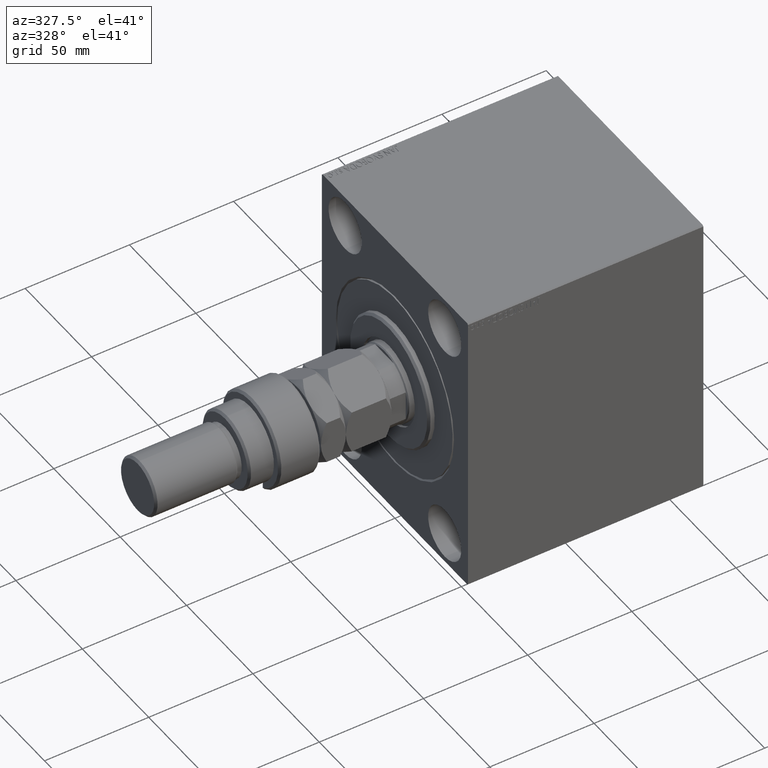
[diagram: clean part render]
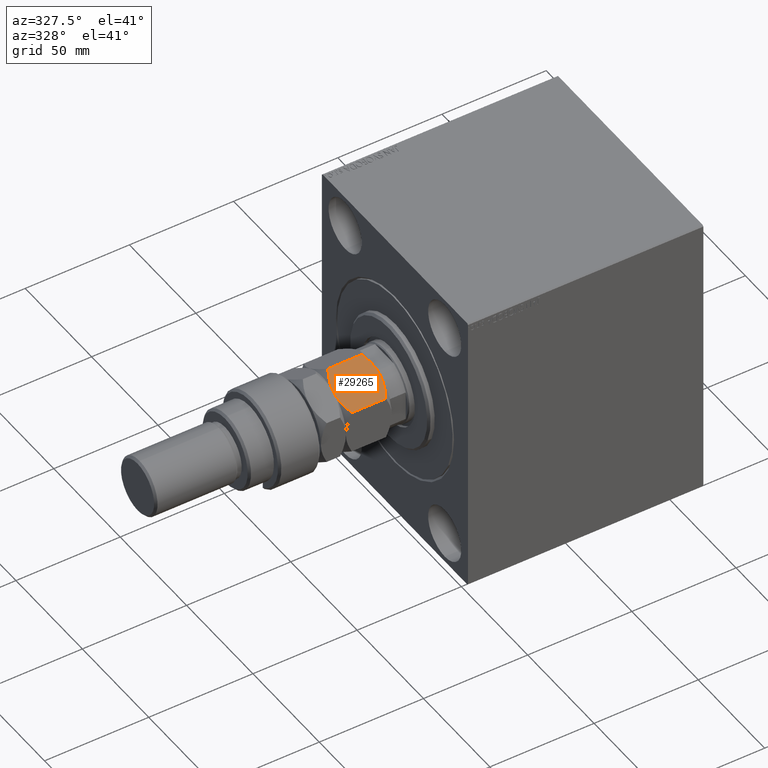
[diagram: same view with one face highlighted and labeled with its STEP entity id]
A machine part, auxiliary view. The second image highlights one B-rep face of the part: STEP entity #29265.
In plain terms, the highlighted planar face has unit normal (0, 0.5, -0.866).
Its self-contained STEP definition (entity closure, byte-faithful):
#117 = CARTESIAN_POINT ( 'NONE',  ( 18.00000000000000355, 5.777644679957243845, 0.8999462410975483939 ) ) ;
#952 = CARTESIAN_POINT ( 'NONE',  ( 18.00000000000000000, -10.39230484541326760, 19.21539030917347901 ) ) ;
#2012 = CARTESIAN_POINT ( 'NONE',  ( 18.00000000000000000, 10.39230484541326227, 19.21539030917347901 ) ) ;
#2177 = CARTESIAN_POINT ( 'NONE',  ( 18.00000000000000355, -9.585738860786738869, 19.61867330148673716 ) ) ;
#3272 = CARTESIAN_POINT ( 'NONE',  ( 18.00000000000000355, -0.4570166227920092750, -1.873806285915962579E-14 ) ) ;
#3894 = CARTESIAN_POINT ( 'NONE',  ( 18.00000000000000000, 6.209292796908475687, 1.036623049275358532 ) ) ;
#4890 = LINE ( 'NONE', #12198, #5027 ) ;
#5024 = AXIS2_PLACEMENT_3D ( 'NONE', #16537, #34711, #31395 ) ;
#5027 = VECTOR ( 'NONE', #44530, 1000.000000000000000 ) ;
#5308 = CARTESIAN_POINT ( 'NONE',  ( 18.00000000000000000, 3.606660380382275655, 21.66338348051975871 ) ) ;
#5546 = CARTESIAN_POINT ( 'NONE',  ( 17.99999999999999645, 0.9155406990339389761, 21.98238456327074175 ) ) ;
#6594 = PLANE ( 'NONE',  #5024 ) ;
#6781 = VERTEX_POINT ( 'NONE', #31575 ) ;
#6796 = CARTESIAN_POINT ( 'NONE',  ( 18.00000000000000000, -2.269920501599955287, 0.1372108013979898566 ) ) ;
#7027 = CARTESIAN_POINT ( 'NONE',  ( 18.00000000000000000, -7.070713019734860438, 1.323462702483229725 ) ) ;
#9247 = CARTESIAN_POINT ( 'NONE',  ( 17.99999999999999289, -7.496347219517971006, 20.50523559702920195 ) ) ;
#10270 = VERTEX_POINT ( 'NONE', #44673 ) ;
#10645 = VECTOR ( 'NONE', #25366, 1000.000000000000000 ) ;
#10991 = ORIENTED_EDGE ( 'NONE', *, *, #26321, .F. ) ;
#12198 = CARTESIAN_POINT ( 'NONE',  ( 18.00000000000000000, -10.39230484541326760, 22.00000000000000000 ) ) ;
#12385 = CARTESIAN_POINT ( 'NONE',  ( 17.99999999999999645, 0.000000000000000000, 22.00000000000000000 ) ) ;
#12620 = CARTESIAN_POINT ( 'NONE',  ( 18.00000000000000000, 6.216134505391694987, 20.97498393630430513 ) ) ;
#13023 = CARTESIAN_POINT ( 'NONE',  ( 18.00000000000000000, -1.830228188859408522, 22.00000000000001421 ) ) ;
#14575 = CARTESIAN_POINT ( 'NONE',  ( 18.00000000000000000, -9.585844502997483474, 2.381379519618630702 ) ) ;
#16537 = CARTESIAN_POINT ( 'NONE',  ( 18.00000000000000000, -10.39230484541326760, 22.00000000000000000 ) ) ;
#18123 = CARTESIAN_POINT ( 'NONE',  ( 18.00000000000000000, -4.484118396622225333, 0.5315467738039385548 ) ) ;
#18529 = CARTESIAN_POINT ( 'NONE',  ( 18.00000000000000000, 3.606961701950820665, 0.2821992827987605534 ) ) ;
#18773 = EDGE_LOOP ( 'NONE', ( #31536, #45866, #10991, #32131, #29403, #44826 ) ) ;
#19128 = CARTESIAN_POINT ( 'NONE',  ( 18.00000000000000000, 10.39230484541326227, 2.784609690826518325 ) ) ;
#21388 = CARTESIAN_POINT ( 'NONE',  ( 18.00000000000000000, 0.000000000000000000, 0.000000000000000000 ) ) ;
#21629 = B_SPLINE_CURVE_WITH_KNOTS ( 'NONE', 3,
 ( #38161, #24012, #43768, #28940, #32934, #3894, #117, #18529, #46632, #21388 ),
 .UNSPECIFIED., .F., .F.,
 ( 4, 2, 2, 2, 4 ),
 ( 0.02782233635826644735, 0.03053256470195755620, 0.03188767887380310889, 0.03324279304564866505, 0.03866324973303088275 ),
 .UNSPECIFIED. ) ;
#24012 = CARTESIAN_POINT ( 'NONE',  ( 18.00000000000000000, 9.585738860786735316, 2.381326698513254403 ) ) ;
#25119 = EDGE_CURVE ( 'NONE', #45082, #36876, #4890, .T. ) ;
#25366 = DIRECTION ( 'NONE',  ( -0.000000000000000000, -0.000000000000000000, -1.000000000000000000 ) ) ;
#25452 = CARTESIAN_POINT ( 'NONE',  ( 18.00000000000000000, -1.820915739938816724, 0.08623745797432426363 ) ) ;
#26321 = EDGE_CURVE ( 'NONE', #41910, #6781, #32878, .T. ) ;
#26812 = CARTESIAN_POINT ( 'NONE',  ( 18.00000000000000355, 0.4570166227920159918, 22.00000000000001776 ) ) ;
#26980 = CARTESIAN_POINT ( 'NONE',  ( 18.00000000000000000, -7.068075135443438128, 20.66621128172917210 ) ) ;
#27043 = CARTESIAN_POINT ( 'NONE',  ( 18.00000000000000000, 8.761367480501970562, 19.99593070559867058 ) ) ;
#27280 = CARTESIAN_POINT ( 'NONE',  ( 18.00000000000000355, 7.070713019734867544, 20.67653729751676650 ) ) ;
#27689 = CARTESIAN_POINT ( 'NONE',  ( 18.00000000000000000, -10.39230484541326760, 19.21539030917347901 ) ) ;
#27871 = FACE_OUTER_BOUND ( 'NONE', #18773, .T. ) ;
#28288 = B_SPLINE_CURVE_WITH_KNOTS ( 'NONE', 3,
 ( #27689, #2177, #41120, #9247, #26980, #45362, #45603, #41358, #13023, #44888 ),
 .UNSPECIFIED., .F., .F.,
 ( 4, 2, 2, 2, 4 ),
 ( 0.02782233635826645082, 0.03053256470195755967, 0.03188767887380311583, 0.03324279304564867199, 0.03866324973303089663 ),
 .UNSPECIFIED. ) ;
#28763 = CARTESIAN_POINT ( 'NONE',  ( 18.00000000000000000, -0.9155406990339320927, 0.01761543672925008908 ) ) ;
#28940 = CARTESIAN_POINT ( 'NONE',  ( 17.99999999999999645, 7.496347219517969229, 1.494764402970787609 ) ) ;
#29265 = ADVANCED_FACE ( 'NONE', ( #27871 ), #6594, .F. ) ;
#29403 = ORIENTED_EDGE ( 'NONE', *, *, #25119, .T. ) ;
#30583 = CARTESIAN_POINT ( 'NONE',  ( 18.00000000000000000, 2.269920501599961060, 21.86278919860200531 ) ) ;
#30805 = CARTESIAN_POINT ( 'NONE',  ( 18.00000000000000000, -10.39230484541326760, 2.784609690826518769 ) ) ;
#31395 = DIRECTION ( 'NONE',  ( 0.000000000000000000, 0.000000000000000000, 1.000000000000000000 ) ) ;
#31536 = ORIENTED_EDGE ( 'NONE', *, *, #34541, .F. ) ;
#31575 = CARTESIAN_POINT ( 'NONE',  ( 18.00000000000000000, 10.39230484541326227, 19.21539030917347901 ) ) ;
#31853 = EDGE_CURVE ( 'NONE', #10270, #36876, #38694, .T. ) ;
#32131 = ORIENTED_EDGE ( 'NONE', *, *, #37205, .F. ) ;
#32878 = B_SPLINE_CURVE_WITH_KNOTS ( 'NONE', 3,
 ( #12385, #26812, #5546, #41190, #30583, #5308, #44960, #12620, #27280, #27043, #34353, #2012 ),
 .UNSPECIFIED., .F., .F.,
 ( 4, 2, 2, 2, 2, 4 ),
 ( 0.03866324973303089663, 0.04001676336829056158, 0.04137027700355022652, 0.04407730427406955642, 0.04678433154458888632, 0.04949135881510821622 ),
 .UNSPECIFIED. ) ;
#32934 = CARTESIAN_POINT ( 'NONE',  ( 18.00000000000000000, 7.068075135443436352, 1.333788718270820572 ) ) ;
#34353 = CARTESIAN_POINT ( 'NONE',  ( 18.00000000000000000, 9.585844502997481698, 19.61862048038136663 ) ) ;
#34541 = EDGE_CURVE ( 'NONE', #46505, #10270, #21629, .T. ) ;
#34711 = DIRECTION ( 'NONE',  ( -1.000000000000000000, 0.000000000000000000, 0.000000000000000000 ) ) ;
#35838 = CARTESIAN_POINT ( 'NONE',  ( 18.00000000000000000, -10.39230484541326760, 2.784609690826518769 ) ) ;
#36295 = CARTESIAN_POINT ( 'NONE',  ( 18.00000000000000355, -8.761367480501965233, 2.004069294401318757 ) ) ;
#36674 = CARTESIAN_POINT ( 'NONE',  ( 18.00000000000000000, 10.39230484541326227, 22.00000000000000000 ) ) ;
#36876 = VERTEX_POINT ( 'NONE', #30805 ) ;
#37205 = EDGE_CURVE ( 'NONE', #45082, #41910, #28288, .T. ) ;
#38161 = CARTESIAN_POINT ( 'NONE',  ( 18.00000000000000000, 10.39230484541326227, 2.784609690826518325 ) ) ;
#38694 = B_SPLINE_CURVE_WITH_KNOTS ( 'NONE', 3,
 ( #41532, #3272, #28763, #25452, #6796, #39374, #18123, #39836, #7027, #36295, #14575, #35838 ),
 .UNSPECIFIED., .F., .F.,
 ( 4, 2, 2, 2, 2, 4 ),
 ( 0.03866324973303088275, 0.04001676336829054770, 0.04137027700355021265, 0.04407730427406954254, 0.04678433154458887938, 0.04949135881510820928 ),
 .UNSPECIFIED. ) ;
#39374 = CARTESIAN_POINT ( 'NONE',  ( 18.00000000000000355, -3.606660380382270770, 0.3366165194802388516 ) ) ;
#39526 = LINE ( 'NONE', #36674, #10645 ) ;
#39836 = CARTESIAN_POINT ( 'NONE',  ( 18.00000000000000711, -6.216134505391689657, 1.025016063695673774 ) ) ;
#41120 = CARTESIAN_POINT ( 'NONE',  ( 18.00000000000000000, -8.763088818352407827, 19.99514569897121774 ) ) ;
#41190 = CARTESIAN_POINT ( 'NONE',  ( 18.00000000000000355, 1.820915739938823608, 21.91376254202567253 ) ) ;
#41358 = CARTESIAN_POINT ( 'NONE',  ( 18.00000000000000000, -3.606961701950823329, 21.71780071720124283 ) ) ;
#41487 = EDGE_CURVE ( 'NONE', #6781, #46505, #39526, .T. ) ;
#41532 = CARTESIAN_POINT ( 'NONE',  ( 18.00000000000000000, 0.000000000000000000, 0.000000000000000000 ) ) ;
#41910 = VERTEX_POINT ( 'NONE', #44558 ) ;
#43768 = CARTESIAN_POINT ( 'NONE',  ( 18.00000000000000000, 8.763088818352407827, 2.004854301028772934 ) ) ;
#44530 = DIRECTION ( 'NONE',  ( -0.000000000000000000, -0.000000000000000000, -1.000000000000000000 ) ) ;
#44558 = CARTESIAN_POINT ( 'NONE',  ( 17.99999999999999645, 0.000000000000000000, 22.00000000000000000 ) ) ;
#44673 = CARTESIAN_POINT ( 'NONE',  ( 18.00000000000000000, 0.000000000000000000, 0.000000000000000000 ) ) ;
#44826 = ORIENTED_EDGE ( 'NONE', *, *, #31853, .F. ) ;
#44888 = CARTESIAN_POINT ( 'NONE',  ( 17.99999999999999645, 0.000000000000000000, 22.00000000000000000 ) ) ;
#44960 = CARTESIAN_POINT ( 'NONE',  ( 18.00000000000000000, 4.484118396622231550, 21.46845322619605057 ) ) ;
#45082 = VERTEX_POINT ( 'NONE', #952 ) ;
#45362 = CARTESIAN_POINT ( 'NONE',  ( 18.00000000000001066, -6.209292796908481904, 20.96337695072464768 ) ) ;
#45603 = CARTESIAN_POINT ( 'NONE',  ( 18.00000000000000355, -5.777644679957246510, 21.10005375890245460 ) ) ;
#45866 = ORIENTED_EDGE ( 'NONE', *, *, #41487, .F. ) ;
#46505 = VERTEX_POINT ( 'NONE', #19128 ) ;
#46632 = CARTESIAN_POINT ( 'NONE',  ( 18.00000000000000355, 1.830228188859414074, -1.798420353610330795E-14 ) ) ;